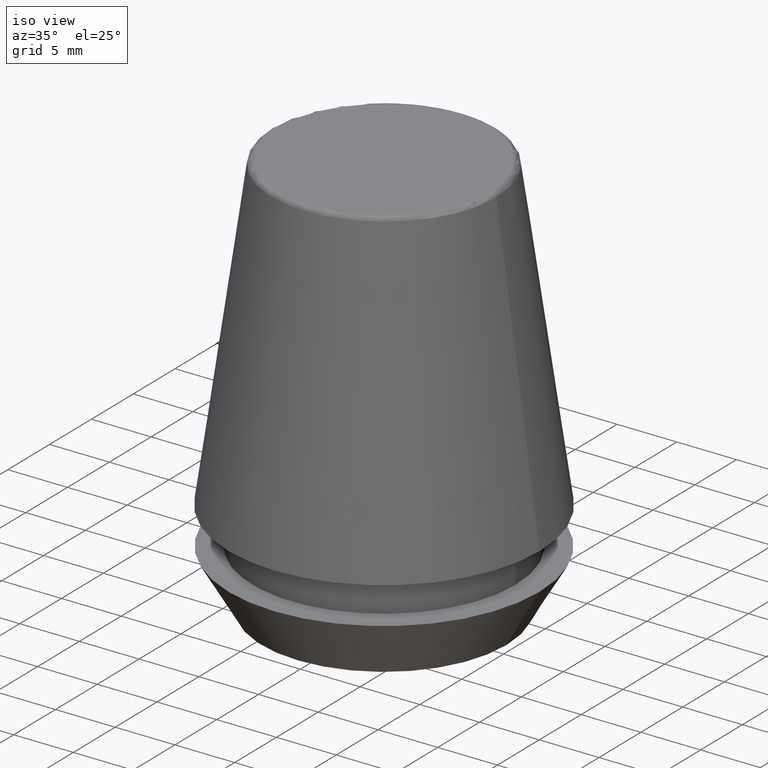
[diagram: clean part render]
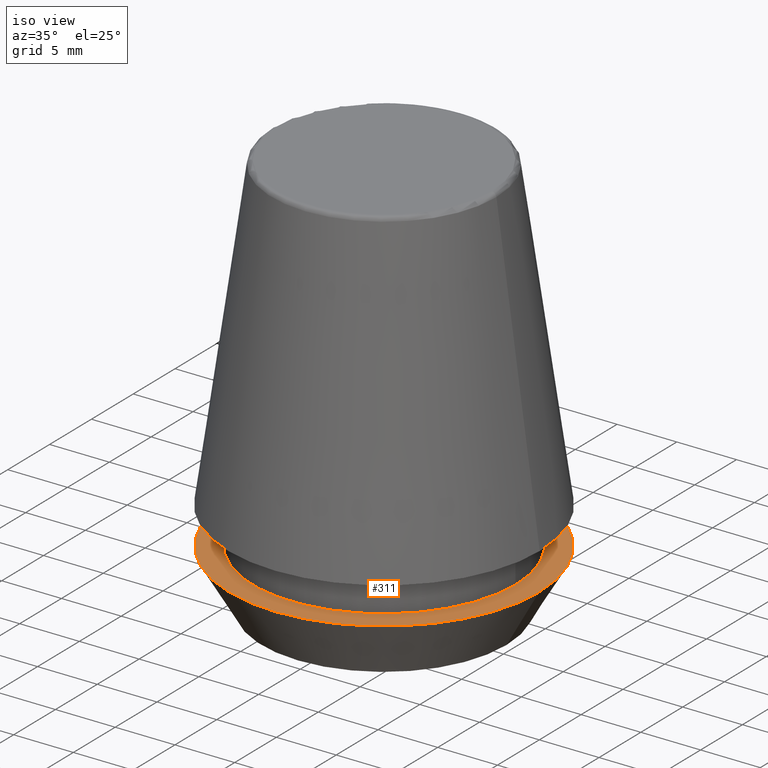
[diagram: same view with one face highlighted and labeled with its STEP entity id]
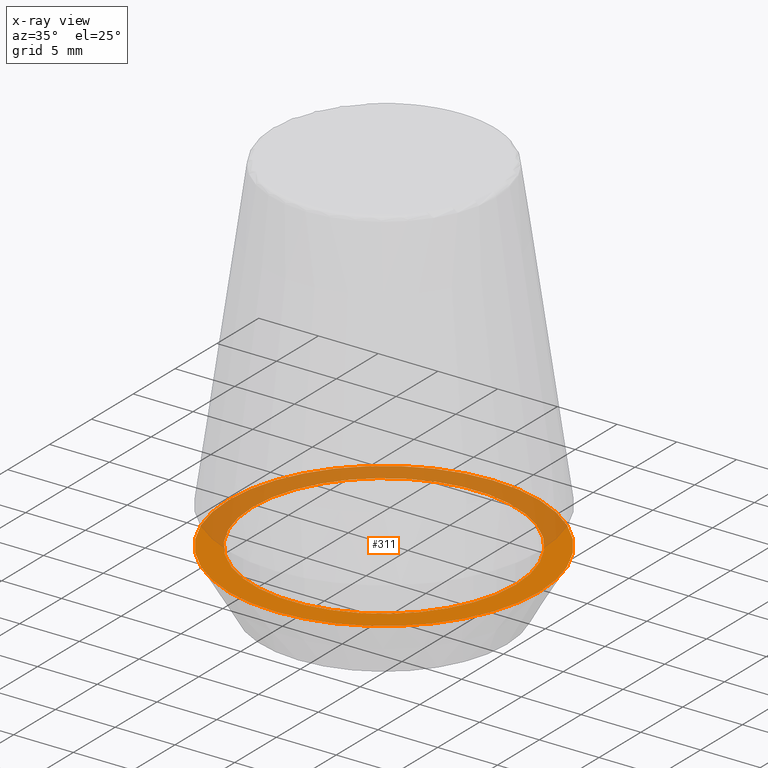
[diagram: x-ray of the same camera — body ghosted, the highlighted face saturated]
A machine part, iso view. The second image highlights one B-rep face of the part: STEP entity #311.
The next image is the same camera in x-ray: the body ghosted, the highlighted face saturated — about 46% of this face is hidden behind the body in this view.
In plain terms, the highlighted planar face has unit normal (0, 0, -1).
Its self-contained STEP definition (entity closure, byte-faithful):
#12 = DIRECTION ( 'NONE',  ( 0.0000000000000000000, 0.0000000000000000000, -1.000000000000000000 ) ) ;
#20 = DIRECTION ( 'NONE',  ( 1.000000000000000000, 0.0000000000000000000, 0.0000000000000000000 ) ) ;
#24 = PLANE ( 'NONE',  #122 ) ;
#32 = AXIS2_PLACEMENT_3D ( 'NONE', #297, #145, #331 ) ;
#48 = FACE_OUTER_BOUND ( 'NONE', #337, .T. ) ;
#51 = EDGE_CURVE ( 'NONE', #136, #69, #196, .T. ) ;
#64 = EDGE_CURVE ( 'NONE', #69, #136, #370, .T. ) ;
#69 = VERTEX_POINT ( 'NONE', #162 ) ;
#71 = AXIS2_PLACEMENT_3D ( 'NONE', #160, #131, #255 ) ;
#104 = FACE_BOUND ( 'NONE', #205, .T. ) ;
#122 = AXIS2_PLACEMENT_3D ( 'NONE', #354, #12, #213 ) ;
#131 = DIRECTION ( 'NONE',  ( -0.0000000000000000000, -0.0000000000000000000, 1.000000000000000000 ) ) ;
#136 = VERTEX_POINT ( 'NONE', #264 ) ;
#140 = CIRCLE ( 'NONE', #32, 11.00000000000000000 ) ;
#145 = DIRECTION ( 'NONE',  ( -0.0000000000000000000, -0.0000000000000000000, 1.000000000000000000 ) ) ;
#146 = EDGE_CURVE ( 'NONE', #243, #169, #321, .T. ) ;
#160 = CARTESIAN_POINT ( 'NONE',  ( 0.0000000000000000000, 0.0000000000000000000, 4.742050807568884500 ) ) ;
#162 = CARTESIAN_POINT ( 'NONE',  ( 13.00000000000000000, 0.0000000000000000000, 4.742050807568884500 ) ) ;
#168 = CARTESIAN_POINT ( 'NONE',  ( 0.0000000000000000000, 0.0000000000000000000, 4.742050807568884500 ) ) ;
#169 = VERTEX_POINT ( 'NONE', #184 ) ;
#184 = CARTESIAN_POINT ( 'NONE',  ( 11.00000000000000000, 0.0000000000000000000, 4.742050807568884500 ) ) ;
#196 = CIRCLE ( 'NONE', #329, 13.00000000000000000 ) ;
#205 = EDGE_LOOP ( 'NONE', ( #347, #358 ) ) ;
#213 = DIRECTION ( 'NONE',  ( -1.000000000000000000, 0.0000000000000000000, -0.0000000000000000000 ) ) ;
#243 = VERTEX_POINT ( 'NONE', #343 ) ;
#252 = CARTESIAN_POINT ( 'NONE',  ( 0.0000000000000000000, 0.0000000000000000000, 4.742050807568884500 ) ) ;
#255 = DIRECTION ( 'NONE',  ( 1.000000000000000000, 0.0000000000000000000, 0.0000000000000000000 ) ) ;
#256 = ORIENTED_EDGE ( 'NONE', *, *, #51, .T. ) ;
#264 = CARTESIAN_POINT ( 'NONE',  ( -13.00000000000000000, 1.592040838891559100E-015, 4.742050807568884500 ) ) ;
#297 = CARTESIAN_POINT ( 'NONE',  ( 0.0000000000000000000, 0.0000000000000000000, 4.742050807568884500 ) ) ;
#302 = DIRECTION ( 'NONE',  ( 1.000000000000000000, 0.0000000000000000000, 0.0000000000000000000 ) ) ;
#311 = ADVANCED_FACE ( 'NONE', ( #104, #48 ), #24, .F. ) ;
#313 = DIRECTION ( 'NONE',  ( -0.0000000000000000000, -0.0000000000000000000, 1.000000000000000000 ) ) ;
#321 = CIRCLE ( 'NONE', #71, 11.00000000000000000 ) ;
#324 = DIRECTION ( 'NONE',  ( -0.0000000000000000000, -0.0000000000000000000, 1.000000000000000000 ) ) ;
#329 = AXIS2_PLACEMENT_3D ( 'NONE', #168, #324, #20 ) ;
#331 = DIRECTION ( 'NONE',  ( 1.000000000000000000, 0.0000000000000000000, 0.0000000000000000000 ) ) ;
#337 = EDGE_LOOP ( 'NONE', ( #361, #256 ) ) ;
#343 = CARTESIAN_POINT ( 'NONE',  ( -11.00000000000000000, 1.347111479062088400E-015, 4.742050807568884500 ) ) ;
#345 = AXIS2_PLACEMENT_3D ( 'NONE', #252, #313, #302 ) ;
#347 = ORIENTED_EDGE ( 'NONE', *, *, #357, .F. ) ;
#354 = CARTESIAN_POINT ( 'NONE',  ( 0.0000000000000000000, 13.00000000000000000, 4.742050807568884500 ) ) ;
#357 = EDGE_CURVE ( 'NONE', #169, #243, #140, .T. ) ;
#358 = ORIENTED_EDGE ( 'NONE', *, *, #146, .F. ) ;
#361 = ORIENTED_EDGE ( 'NONE', *, *, #64, .T. ) ;
#370 = CIRCLE ( 'NONE', #345, 13.00000000000000000 ) ;